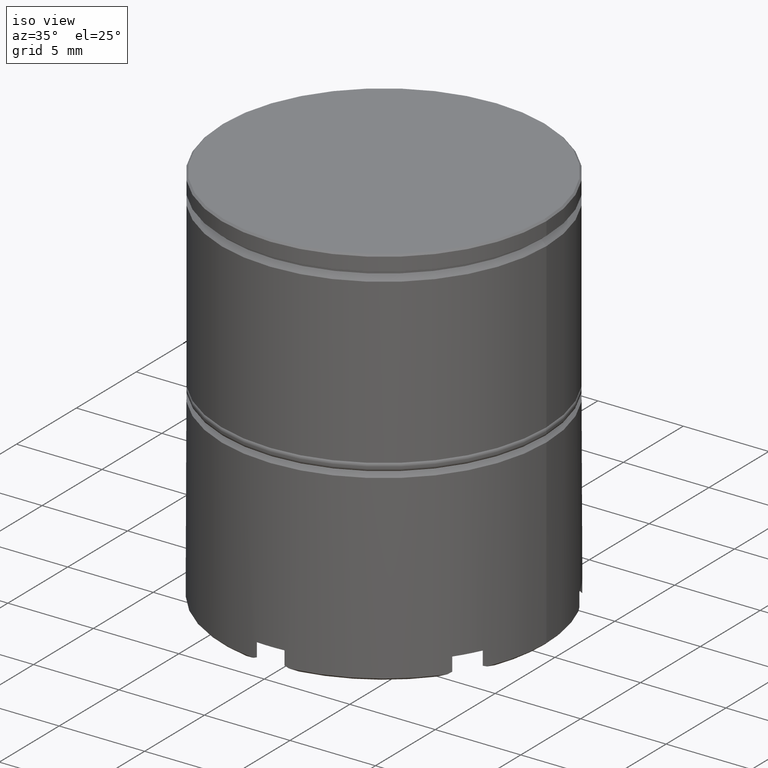
[diagram: clean part render]
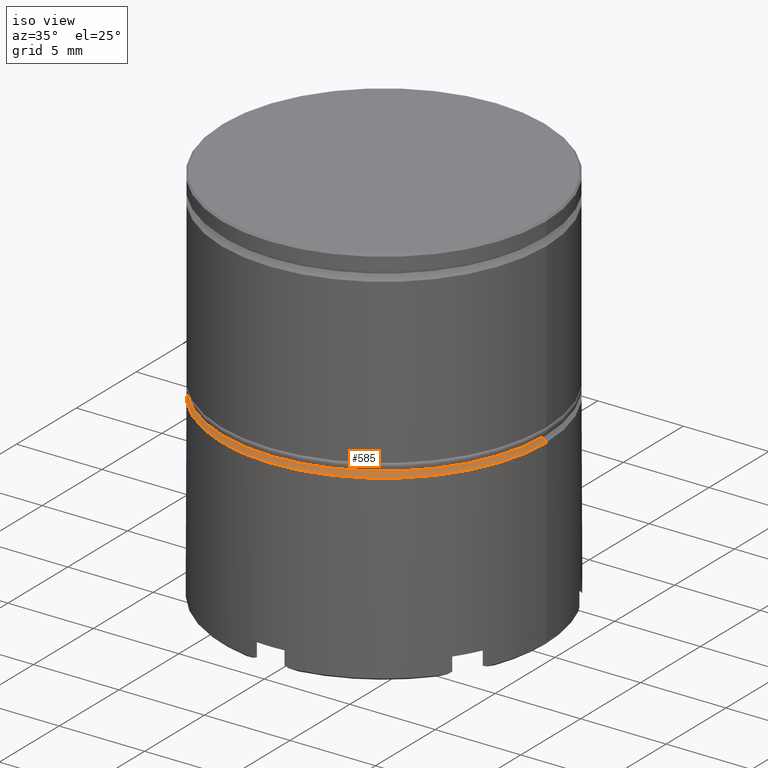
[diagram: same view with one face highlighted and labeled with its STEP entity id]
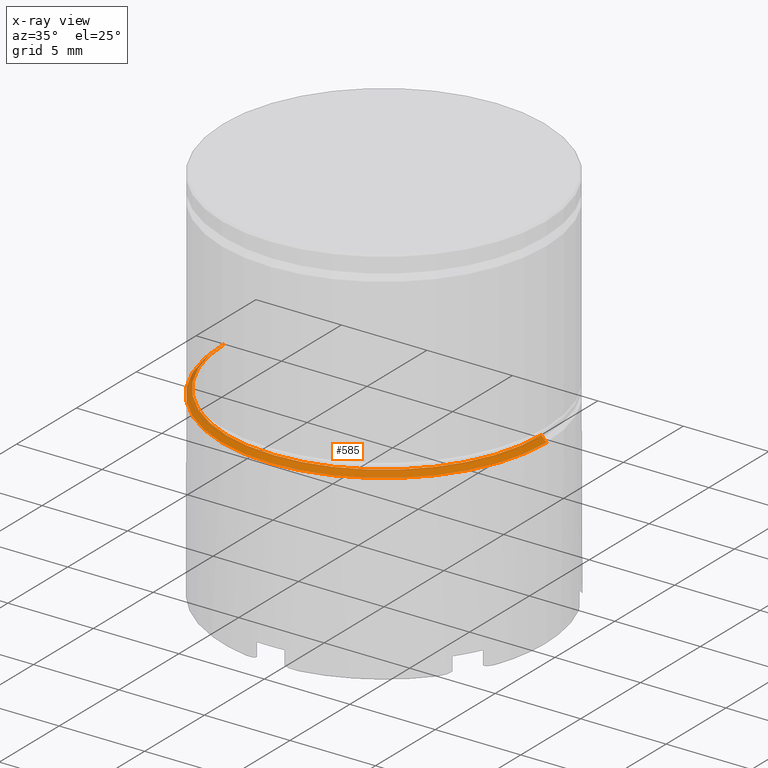
[diagram: x-ray of the same camera — body ghosted, the highlighted face saturated]
A machine part, iso view. The second image highlights one B-rep face of the part: STEP entity #585.
The next image is the same camera in x-ray: the body ghosted, the highlighted face saturated — about 2% of this face is hidden behind the body in this view.
In plain terms, the highlighted conical surface has half-angle 45 deg.
Its self-contained STEP definition (entity closure, byte-faithful):
#40 = CIRCLE ( 'NONE', #1568, 9.500000000000000000 ) ;
#53 = EDGE_CURVE ( 'NONE', #974, #1211, #1249, .T. ) ;
#59 = CARTESIAN_POINT ( 'NONE',  ( -9.500000000000000000, 1.163414459189985485E-15, -11.80000000000000249 ) ) ;
#78 = CARTESIAN_POINT ( 'NONE',  ( 9.199999999999999289, 0.000000000000000000, -11.50000000000000000 ) ) ;
#81 = ORIENTED_EDGE ( 'NONE', *, *, #1265, .T. ) ;
#159 = LINE ( 'NONE', #1315, #847 ) ;
#223 = CARTESIAN_POINT ( 'NONE',  ( 0.000000000000000000, 0.000000000000000000, -11.50000000000000000 ) ) ;
#252 = DIRECTION ( 'NONE',  ( -1.000000000000000000, 0.000000000000000000, 0.000000000000000000 ) ) ;
#299 = AXIS2_PLACEMENT_3D ( 'NONE', #1030, #1535, #252 ) ;
#322 = CONICAL_SURFACE ( 'NONE', #299, 9.199999999999999289, 0.7853981633974425058 ) ;
#355 = DIRECTION ( 'NONE',  ( 1.000000000000000000, 0.000000000000000000, 0.000000000000000000 ) ) ;
#442 = EDGE_LOOP ( 'NONE', ( #1356, #842, #81, #1368 ) ) ;
#495 = EDGE_CURVE ( 'NONE', #603, #974, #1509, .T. ) ;
#533 = CARTESIAN_POINT ( 'NONE',  ( 9.199999999999999289, 1.126675055215564822E-15, -11.50000000000000000 ) ) ;
#564 = CARTESIAN_POINT ( 'NONE',  ( 9.500000000000000000, 0.000000000000000000, -11.80000000000000249 ) ) ;
#585 = ADVANCED_FACE ( 'NONE', ( #659 ), #322, .T. ) ;
#603 = VERTEX_POINT ( 'NONE', #1195 ) ;
#630 = EDGE_CURVE ( 'NONE', #1211, #1240, #40, .T. ) ;
#659 = FACE_OUTER_BOUND ( 'NONE', #442, .T. ) ;
#799 = VECTOR ( 'NONE', #1047, 1000.000000000000000 ) ;
#842 = ORIENTED_EDGE ( 'NONE', *, *, #495, .F. ) ;
#847 = VECTOR ( 'NONE', #1435, 1000.000000000000000 ) ;
#878 = DIRECTION ( 'NONE',  ( 0.000000000000000000, 0.000000000000000000, -1.000000000000000000 ) ) ;
#974 = VERTEX_POINT ( 'NONE', #78 ) ;
#1030 = CARTESIAN_POINT ( 'NONE',  ( 0.000000000000000000, 0.000000000000000000, -11.50000000000000000 ) ) ;
#1047 = DIRECTION ( 'NONE',  ( 0.7071067811865434649, 8.659560562354883554E-17, -0.7071067811865516806 ) ) ;
#1099 = DIRECTION ( 'NONE',  ( -0.000000000000000000, -0.000000000000000000, 1.000000000000000000 ) ) ;
#1195 = CARTESIAN_POINT ( 'NONE',  ( -9.199999999999999289, 1.126675055215564822E-15, -11.50000000000000000 ) ) ;
#1211 = VERTEX_POINT ( 'NONE', #564 ) ;
#1240 = VERTEX_POINT ( 'NONE', #59 ) ;
#1249 = LINE ( 'NONE', #533, #799 ) ;
#1265 = EDGE_CURVE ( 'NONE', #603, #1240, #159, .T. ) ;
#1271 = CARTESIAN_POINT ( 'NONE',  ( 0.000000000000000000, 0.000000000000000000, -11.80000000000000249 ) ) ;
#1315 = CARTESIAN_POINT ( 'NONE',  ( -9.199999999999999289, 0.000000000000000000, -11.50000000000000000 ) ) ;
#1335 = AXIS2_PLACEMENT_3D ( 'NONE', #223, #1099, #355 ) ;
#1356 = ORIENTED_EDGE ( 'NONE', *, *, #53, .F. ) ;
#1368 = ORIENTED_EDGE ( 'NONE', *, *, #630, .F. ) ;
#1398 = DIRECTION ( 'NONE',  ( 1.000000000000000000, 0.000000000000000000, 0.000000000000000000 ) ) ;
#1435 = DIRECTION ( 'NONE',  ( -0.7071067811865434649, 0.000000000000000000, -0.7071067811865516806 ) ) ;
#1509 = CIRCLE ( 'NONE', #1335, 9.199999999999999289 ) ;
#1535 = DIRECTION ( 'NONE',  ( 0.000000000000000000, 0.000000000000000000, -1.000000000000000000 ) ) ;
#1568 = AXIS2_PLACEMENT_3D ( 'NONE', #1271, #878, #1398 ) ;